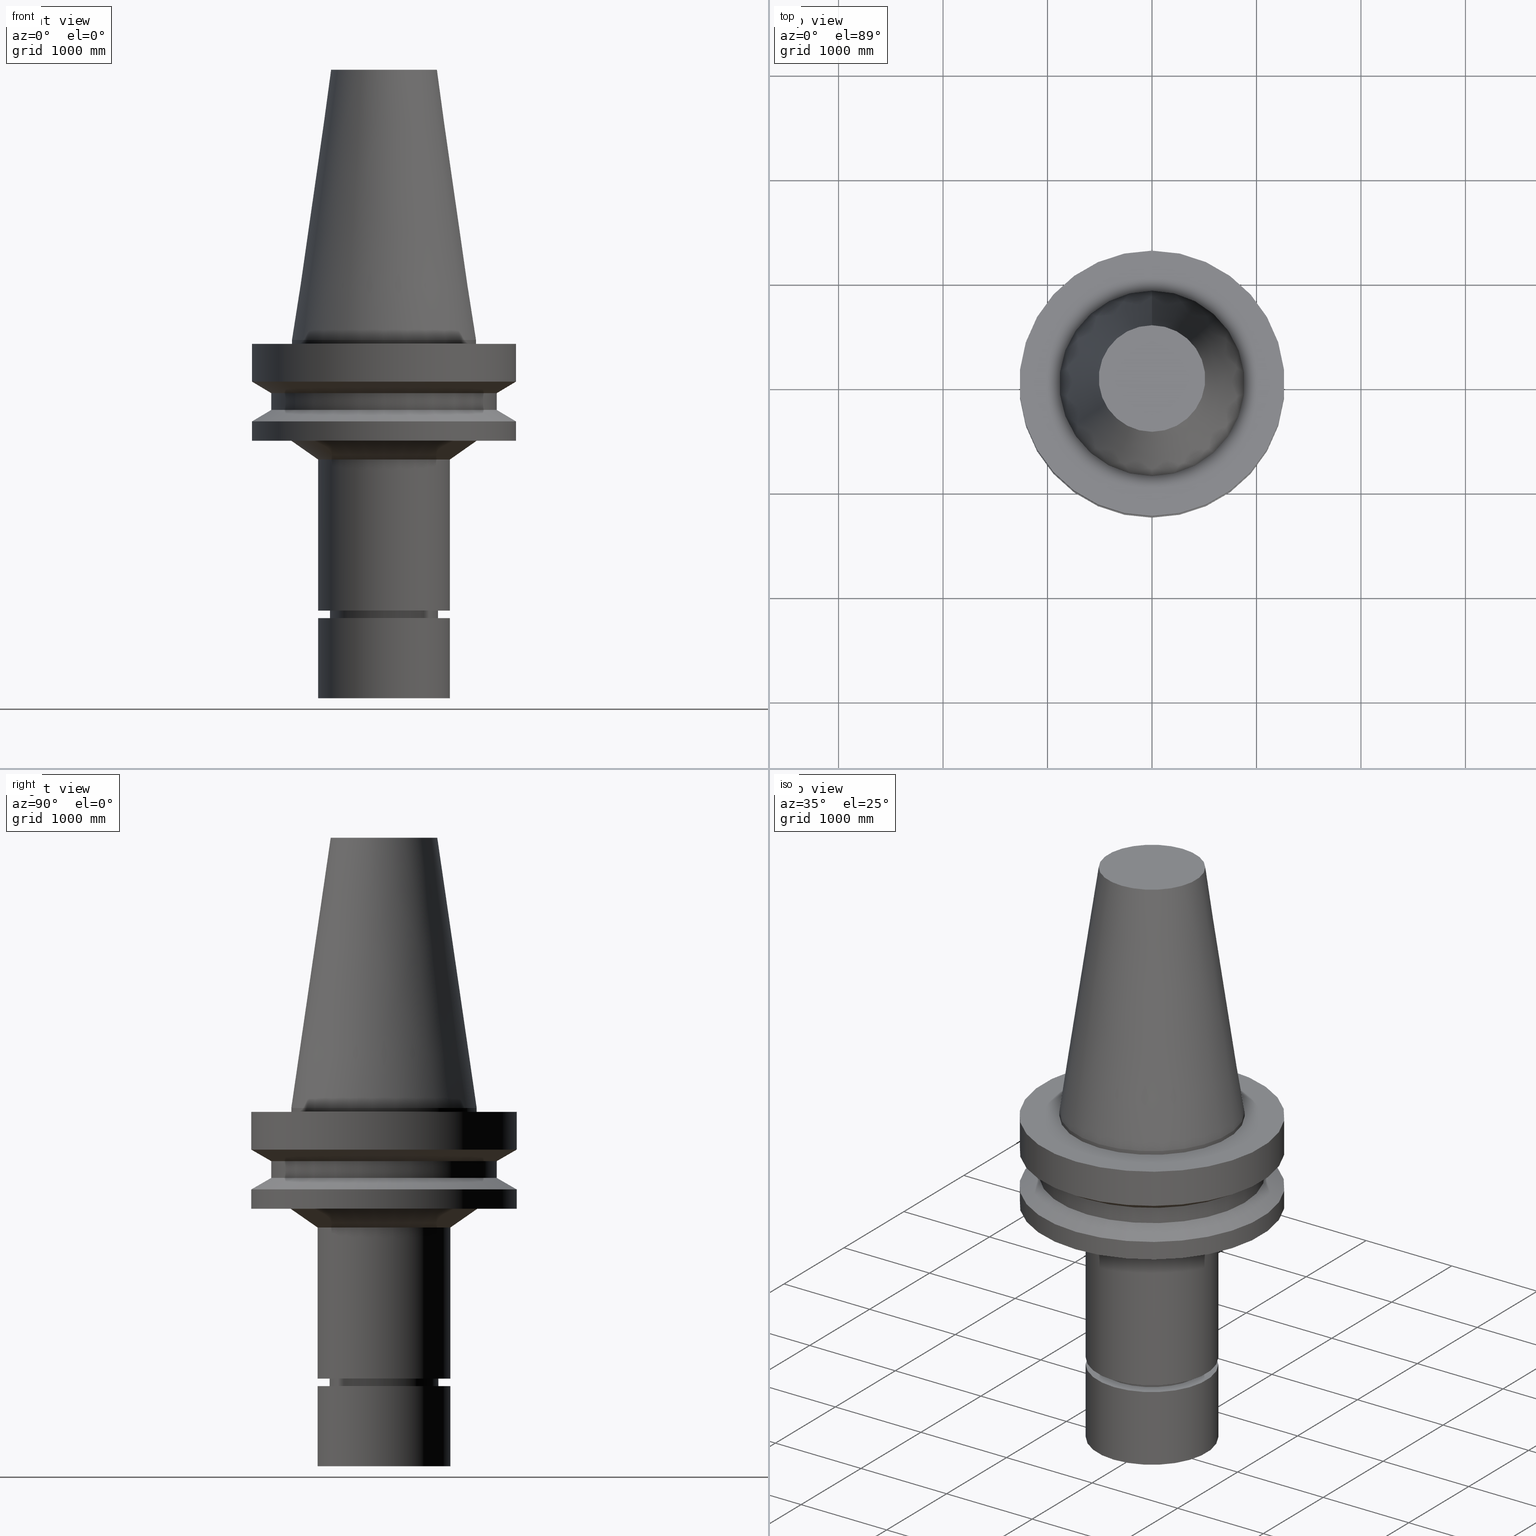
[diagram: canonical four-view strip — front | top / right | iso, engineering-drawing reading convention]
A machine part, canonical four-view strip (front | top / right | iso — engineering-drawing reading convention). The complete STEP part file that produces these views, byte-faithful:
ISO-10303-21;
HEADER;
FILE_DESCRIPTION((''),'1');
FILE_NAME('V:/90_\X2\53D65F9730C730FC30BF\X0\/00_\X2\6DE18DEF30C730FC30BF\X0\/ALL/BBT-BKUS\X2\FF76FF80FF9BFF78FF9E752852A05DE556F3\X0\201801/BBT50-MEGAER/BBT50-MEGAER32-135NL.stp','2018-02-02T09:03:34',(''),(''),'Spatial Interop R21 SP3','Kubotek KeyCreator 2011 V10.0.2 (22737)',' ');
FILE_SCHEMA(('automotive_design'));
ENDSEC;
DATA;
#1=MECHANICAL_DESIGN_GEOMETRIC_PRESENTATION_REPRESENTATION(' ',(#14,#15,#16,#17,#18,#19,#20,#21,#22,#23,#24,#25,#26,#27,#28,#29,#30,#31,#32,#33,#34,#35,#36,#37,#38,#39,#40,#41,#42,#43,#44,#45,#46,#47,#48,#49,#50,#51,#52,#53,#54,#55),#10);
#2=PRODUCT_DEFINITION_CONTEXT('',#56,'design');
#3=APPLICATION_PROTOCOL_DEFINITION('INTERNATIONAL STANDARD','automotive_design',1994,#56);
#4=PRODUCT_CATEGORY_RELATIONSHIP('NONE','NONE',#57,#58);
#5=SHAPE_DEFINITION_REPRESENTATION(#59,#60);
#6=PRODUCT_DEFINITION_CONTEXT('',#61,'design');
#7=APPLICATION_PROTOCOL_DEFINITION('INTERNATIONAL STANDARD','automotive_design',1994,#61);
#8=PRODUCT_CATEGORY_RELATIONSHIP('NONE','NONE',#62,#63);
#9=SHAPE_DEFINITION_REPRESENTATION(#64,#65);
#10= (GEOMETRIC_REPRESENTATION_CONTEXT(3)GLOBAL_UNCERTAINTY_ASSIGNED_CONTEXT((#68))GLOBAL_UNIT_ASSIGNED_CONTEXT((#70,#71,#72))REPRESENTATION_CONTEXT('NONE','WORKSPACE'));
#14=STYLED_ITEM('',(#74),#75);
#15=STYLED_ITEM('',(#76),#77);
#16=STYLED_ITEM('',(#78),#79);
#17=STYLED_ITEM('',(#80,#81),#82);
#18=STYLED_ITEM('',(#83,#84),#85);
#19=STYLED_ITEM('',(#86,#87),#88);
#20=STYLED_ITEM('',(#89),#90);
#21=STYLED_ITEM('',(#91,#92),#93);
#22=STYLED_ITEM('',(#94),#95);
#23=STYLED_ITEM('',(#96),#97);
#24=STYLED_ITEM('',(#98,#99),#100);
#25=STYLED_ITEM('',(#101),#102);
#26=STYLED_ITEM('',(#103),#104);
#27=STYLED_ITEM('',(#105,#106),#107);
#28=STYLED_ITEM('',(#108,#109),#110);
#29=STYLED_ITEM('',(#111,#112),#113);
#30=STYLED_ITEM('',(#114),#115);
#31=STYLED_ITEM('',(#116,#117),#118);
#32=STYLED_ITEM('',(#119),#120);
#33=STYLED_ITEM('',(#121),#122);
#34=STYLED_ITEM('',(#123,#124),#125);
#35=STYLED_ITEM('',(#126),#127);
#36=STYLED_ITEM('',(#128),#129);
#37=STYLED_ITEM('',(#130),#131);
#38=STYLED_ITEM('',(#132,#133),#134);
#39=STYLED_ITEM('',(#135),#136);
#40=STYLED_ITEM('',(#137,#138),#139);
#41=STYLED_ITEM('',(#140),#141);
#42=STYLED_ITEM('',(#142,#143),#144);
#43=STYLED_ITEM('',(#145,#146),#147);
#44=STYLED_ITEM('',(#148,#149),#150);
#45=STYLED_ITEM('',(#151),#152);
#46=STYLED_ITEM('',(#153),#154);
#47=STYLED_ITEM('',(#155,#156),#157);
#48=STYLED_ITEM('',(#158,#159),#160);
#49=STYLED_ITEM('',(#161,#162),#163);
#50=STYLED_ITEM('',(#164,#165),#166);
#51=STYLED_ITEM('',(#167,#168),#169);
#52=STYLED_ITEM('',(#170,#171),#172);
#53=STYLED_ITEM('',(#173,#174),#175);
#54=STYLED_ITEM('',(#176),#177);
#55=STYLED_ITEM('',(#178,#179),#180);
#56=APPLICATION_CONTEXT(' ');
#57=PRODUCT_CATEGORY('part','NONE');
#58=PRODUCT_RELATED_PRODUCT_CATEGORY('detail',' ',(#181));
#59=PRODUCT_DEFINITION_SHAPE('NONE','NONE',#182);
#60=ADVANCED_BREP_SHAPE_REPRESENTATION('Unnamed[1]',(#163,#183),#10);
#61=APPLICATION_CONTEXT(' ');
#62=PRODUCT_CATEGORY('part','NONE');
#63=PRODUCT_RELATED_PRODUCT_CATEGORY('detail',' ',(#184));
#64=PRODUCT_DEFINITION_SHAPE('NONE','NONE',#185);
#65=ADVANCED_BREP_SHAPE_REPRESENTATION('Unnamed[1]',(#139,#186),#10);
#68=UNCERTAINTY_MEASURE_WITH_UNIT(LENGTH_MEASURE(1.0E-006),#70,'','');
#70= (CONVERSION_BASED_UNIT('INCH',#189)LENGTH_UNIT()NAMED_UNIT(#192));
#71= (NAMED_UNIT(#194)PLANE_ANGLE_UNIT()SI_UNIT($,.RADIAN.));
#72= (NAMED_UNIT(#194)SOLID_ANGLE_UNIT()SI_UNIT($,.STERADIAN.));
#74=PRESENTATION_STYLE_ASSIGNMENT((#200));
#75=EDGE_CURVE('Unnamed[1]',#201,#201,#202,.T.);
#76=PRESENTATION_STYLE_ASSIGNMENT((#203));
#77=EDGE_CURVE('Unnamed[1]',#204,#204,#205,.T.);
#78=PRESENTATION_STYLE_ASSIGNMENT((#206));
#79=EDGE_CURVE('Unnamed[1]',#207,#207,#208,.T.);
#80=PRESENTATION_STYLE_ASSIGNMENT((#209));
#81=PRESENTATION_STYLE_ASSIGNMENT((#210));
#82=ADVANCED_FACE('Unnamed[1]',(#211,#212),#213,.T.);
#83=PRESENTATION_STYLE_ASSIGNMENT((#214));
#84=PRESENTATION_STYLE_ASSIGNMENT((#215));
#85=ADVANCED_FACE('Unnamed[1]',(#216,#217),#218,.T.);
#86=PRESENTATION_STYLE_ASSIGNMENT((#219));
#87=PRESENTATION_STYLE_ASSIGNMENT((#220));
#88=ADVANCED_FACE('Unnamed[1]',(#221,#222),#223,.T.);
#89=PRESENTATION_STYLE_ASSIGNMENT((#224));
#90=EDGE_CURVE('Unnamed[1]',#225,#225,#226,.T.);
#91=PRESENTATION_STYLE_ASSIGNMENT((#227));
#92=PRESENTATION_STYLE_ASSIGNMENT((#228));
#93=ADVANCED_FACE('Unnamed[1]',(#229,#230),#231,.T.);
#94=PRESENTATION_STYLE_ASSIGNMENT((#232));
#95=EDGE_CURVE('Unnamed[1]',#233,#233,#234,.T.);
#96=PRESENTATION_STYLE_ASSIGNMENT((#235));
#97=EDGE_CURVE('Unnamed[1]',#236,#236,#237,.T.);
#98=PRESENTATION_STYLE_ASSIGNMENT((#238));
#99=PRESENTATION_STYLE_ASSIGNMENT((#239));
#100=ADVANCED_FACE('Unnamed[1]',(#240,#241),#242,.T.);
#101=PRESENTATION_STYLE_ASSIGNMENT((#243));
#102=EDGE_CURVE('Unnamed[1]',#244,#244,#245,.T.);
#103=PRESENTATION_STYLE_ASSIGNMENT((#246));
#104=EDGE_CURVE('Unnamed[1]',#247,#247,#248,.T.);
#105=PRESENTATION_STYLE_ASSIGNMENT((#249));
#106=PRESENTATION_STYLE_ASSIGNMENT((#250));
#107=ADVANCED_FACE('Unnamed[1]',(#251,#252),#253,.T.);
#108=PRESENTATION_STYLE_ASSIGNMENT((#254));
#109=PRESENTATION_STYLE_ASSIGNMENT((#255));
#110=ADVANCED_FACE('Unnamed[1]',(#256,#257),#258,.T.);
#111=PRESENTATION_STYLE_ASSIGNMENT((#259));
#112=PRESENTATION_STYLE_ASSIGNMENT((#260));
#113=ADVANCED_FACE('Unnamed[1]',(#261,#262),#263,.T.);
#114=PRESENTATION_STYLE_ASSIGNMENT((#264));
#115=EDGE_CURVE('Unnamed[1]',#265,#265,#266,.T.);
#116=PRESENTATION_STYLE_ASSIGNMENT((#267));
#117=PRESENTATION_STYLE_ASSIGNMENT((#268));
#118=ADVANCED_FACE('Unnamed[1]',(#269),#270,.T.);
#119=PRESENTATION_STYLE_ASSIGNMENT((#271));
#120=EDGE_CURVE('Unnamed[1]',#272,#272,#273,.T.);
#121=PRESENTATION_STYLE_ASSIGNMENT((#274));
#122=EDGE_CURVE('Unnamed[1]',#275,#275,#276,.T.);
#123=PRESENTATION_STYLE_ASSIGNMENT((#277));
#124=PRESENTATION_STYLE_ASSIGNMENT((#278));
#125=ADVANCED_FACE('Unnamed[1]',(#279),#280,.T.);
#126=PRESENTATION_STYLE_ASSIGNMENT((#281));
#127=EDGE_CURVE('Unnamed[1]',#282,#282,#283,.T.);
#128=PRESENTATION_STYLE_ASSIGNMENT((#284));
#129=EDGE_CURVE('Unnamed[1]',#285,#285,#286,.T.);
#130=PRESENTATION_STYLE_ASSIGNMENT((#287));
#131=EDGE_CURVE('Unnamed[1]',#288,#288,#289,.T.);
#132=PRESENTATION_STYLE_ASSIGNMENT((#290));
#133=PRESENTATION_STYLE_ASSIGNMENT((#291));
#134=ADVANCED_FACE('Unnamed[1]',(#292,#293),#294,.T.);
#135=PRESENTATION_STYLE_ASSIGNMENT((#295));
#136=EDGE_CURVE('Unnamed[1]',#296,#296,#297,.T.);
#137=PRESENTATION_STYLE_ASSIGNMENT((#298));
#138=PRESENTATION_STYLE_ASSIGNMENT((#299));
#139=MANIFOLD_SOLID_BREP('Unnamed[1]',#300);
#140=PRESENTATION_STYLE_ASSIGNMENT((#301));
#141=EDGE_CURVE('Unnamed[1]',#302,#302,#303,.T.);
#142=PRESENTATION_STYLE_ASSIGNMENT((#304));
#143=PRESENTATION_STYLE_ASSIGNMENT((#305));
#144=ADVANCED_FACE('Unnamed[1]',(#306),#307,.T.);
#145=PRESENTATION_STYLE_ASSIGNMENT((#308));
#146=PRESENTATION_STYLE_ASSIGNMENT((#309));
#147=ADVANCED_FACE('Unnamed[1]',(#310,#311),#312,.T.);
#148=PRESENTATION_STYLE_ASSIGNMENT((#313));
#149=PRESENTATION_STYLE_ASSIGNMENT((#314));
#150=ADVANCED_FACE('Unnamed[1]',(#315,#316),#317,.T.);
#151=PRESENTATION_STYLE_ASSIGNMENT((#318));
#152=EDGE_CURVE('Unnamed[1]',#319,#319,#320,.T.);
#153=PRESENTATION_STYLE_ASSIGNMENT((#321));
#154=EDGE_CURVE('Unnamed[1]',#322,#322,#323,.T.);
#155=PRESENTATION_STYLE_ASSIGNMENT((#324));
#156=PRESENTATION_STYLE_ASSIGNMENT((#325));
#157=ADVANCED_FACE('Unnamed[1]',(#326,#327),#328,.T.);
#158=PRESENTATION_STYLE_ASSIGNMENT((#329));
#159=PRESENTATION_STYLE_ASSIGNMENT((#330));
#160=ADVANCED_FACE('Unnamed[1]',(#331,#332),#333,.T.);
#161=PRESENTATION_STYLE_ASSIGNMENT((#334));
#162=PRESENTATION_STYLE_ASSIGNMENT((#335));
#163=MANIFOLD_SOLID_BREP('Unnamed[1]',#336);
#164=PRESENTATION_STYLE_ASSIGNMENT((#337));
#165=PRESENTATION_STYLE_ASSIGNMENT((#338));
#166=ADVANCED_FACE('Unnamed[1]',(#339,#340),#341,.T.);
#167=PRESENTATION_STYLE_ASSIGNMENT((#342));
#168=PRESENTATION_STYLE_ASSIGNMENT((#343));
#169=ADVANCED_FACE('Unnamed[1]',(#344,#345),#346,.T.);
#170=PRESENTATION_STYLE_ASSIGNMENT((#347));
#171=PRESENTATION_STYLE_ASSIGNMENT((#348));
#172=ADVANCED_FACE('Unnamed[1]',(#349,#350),#351,.T.);
#173=PRESENTATION_STYLE_ASSIGNMENT((#352));
#174=PRESENTATION_STYLE_ASSIGNMENT((#353));
#175=ADVANCED_FACE('Unnamed[1]',(#354),#355,.T.);
#176=PRESENTATION_STYLE_ASSIGNMENT((#356));
#177=EDGE_CURVE('Unnamed[1]',#357,#357,#358,.T.);
#178=PRESENTATION_STYLE_ASSIGNMENT((#359));
#179=PRESENTATION_STYLE_ASSIGNMENT((#360));
#180=ADVANCED_FACE('Unnamed[1]',(#361,#362),#363,.T.);
#181=PRODUCT('Unnamed[1]','Unnamed[1]','PART-Unnamed[1]-DESC',(#364));
#182=PRODUCT_DEFINITION('NONE','NONE',#365,#2);
#183=AXIS2_PLACEMENT_3D('',#366,#367,#368);
#184=PRODUCT('Unnamed[1]','Unnamed[1]','PART-Unnamed[1]-DESC',(#369));
#185=PRODUCT_DEFINITION('NONE','NONE',#370,#6);
#186=AXIS2_PLACEMENT_3D('',#371,#372,#373);
#189=LENGTH_MEASURE_WITH_UNIT(LENGTH_MEASURE(25.4),#374);
#192=DIMENSIONAL_EXPONENTS(1.0,0.0,0.0,0.0,0.0,0.0,0.0);
#194=DIMENSIONAL_EXPONENTS(0.0,0.0,0.0,0.0,0.0,0.0,0.0);
#200=CURVE_STYLE('',#375,POSITIVE_LENGTH_MEASURE(1000.0),#376);
#201=VERTEX_POINT('',#377);
#202=CIRCLE('',#378,42.5);
#203=CURVE_STYLE('',#379,POSITIVE_LENGTH_MEASURE(1000.0),#380);
#204=VERTEX_POINT('',#381);
#205=CIRCLE('',#382,25.0);
#206=CURVE_STYLE('',#383,POSITIVE_LENGTH_MEASURE(1000.0),#384);
#207=VERTEX_POINT('',#385);
#208=CIRCLE('',#386,20.0000000000001);
#209=SURFACE_STYLE_USAGE(.BOTH.,#387);
#210=CURVE_STYLE('',#388,POSITIVE_LENGTH_MEASURE(1000.0),#389);
#211=FACE_BOUND('',#390,.T.);
#212=FACE_BOUND('',#391,.T.);
#213=CYLINDRICAL_SURFACE('',#392,20.0);
#214=SURFACE_STYLE_USAGE(.BOTH.,#393);
#215=CURVE_STYLE('',#394,POSITIVE_LENGTH_MEASURE(1000.0),#395);
#216=FACE_BOUND('',#396,.T.);
#217=FACE_BOUND('',#397,.T.);
#218=CYLINDRICAL_SURFACE('',#398,50.0);
#219=SURFACE_STYLE_USAGE(.BOTH.,#399);
#220=CURVE_STYLE('',#400,POSITIVE_LENGTH_MEASURE(1000.0),#401);
#221=FACE_BOUND('',#402,.T.);
#222=FACE_BOUND('',#403,.T.);
#223=CONICAL_SURFACE('',#404,19.4499999999999,0.523598775598227);
#224=CURVE_STYLE('',#405,POSITIVE_LENGTH_MEASURE(1000.0),#406);
#225=VERTEX_POINT('',#407);
#226=CIRCLE('',#408,25.0);
#227=SURFACE_STYLE_USAGE(.BOTH.,#409);
#228=CURVE_STYLE('',#410,POSITIVE_LENGTH_MEASURE(1000.0),#411);
#229=FACE_BOUND('',#412,.T.);
#230=FACE_BOUND('',#413,.T.);
#231=CONICAL_SURFACE('',#414,30.0717863357276,0.962446965226469);
#232=CURVE_STYLE('',#415,POSITIVE_LENGTH_MEASURE(1000.0),#416);
#233=VERTEX_POINT('',#417);
#234=CIRCLE('',#418,18.8999999999997);
#235=CURVE_STYLE('',#419,POSITIVE_LENGTH_MEASURE(1000.0),#420);
#236=VERTEX_POINT('',#421);
#237=CIRCLE('',#422,20.5000000000012);
#238=SURFACE_STYLE_USAGE(.BOTH.,#423);
#239=CURVE_STYLE('',#424,POSITIVE_LENGTH_MEASURE(1000.0),#425);
#240=FACE_BOUND('',#426,.T.);
#241=FACE_BOUND('',#427,.T.);
#242=CONICAL_SURFACE('',#428,20.2500000000006,1.04719755120258);
#243=CURVE_STYLE('',#429,POSITIVE_LENGTH_MEASURE(1000.0),#430);
#244=VERTEX_POINT('',#431);
#245=CIRCLE('',#432,50.0);
#246=CURVE_STYLE('',#433,POSITIVE_LENGTH_MEASURE(1000.0),#434);
#247=VERTEX_POINT('',#435);
#248=CIRCLE('',#436,50.0);
#249=SURFACE_STYLE_USAGE(.BOTH.,#437);
#250=CURVE_STYLE('',#438,POSITIVE_LENGTH_MEASURE(1000.0),#439);
#251=FACE_BOUND('',#440,.T.);
#252=FACE_BOUND('',#441,.T.);
#253=CYLINDRICAL_SURFACE('',#442,20.4999999999961);
#254=SURFACE_STYLE_USAGE(.BOTH.,#443);
#255=CURVE_STYLE('',#444,POSITIVE_LENGTH_MEASURE(1000.0),#445);
#256=FACE_OUTER_BOUND('',#446,.T.);
#257=FACE_BOUND('',#447,.T.);
#258=PLANE('',#448);
#259=SURFACE_STYLE_USAGE(.BOTH.,#449);
#260=CURVE_STYLE('',#450,POSITIVE_LENGTH_MEASURE(1000.0),#451);
#261=FACE_BOUND('',#452,.T.);
#262=FACE_BOUND('',#453,.T.);
#263=CYLINDRICAL_SURFACE('',#454,50.0);
#264=CURVE_STYLE('',#455,POSITIVE_LENGTH_MEASURE(1000.0),#456);
#265=VERTEX_POINT('',#457);
#266=CIRCLE('',#458,25.0000000000004);
#267=SURFACE_STYLE_USAGE(.BOTH.,#459);
#268=CURVE_STYLE('',#460,POSITIVE_LENGTH_MEASURE(1000.0),#461);
#269=FACE_OUTER_BOUND('',#462,.T.);
#270=PLANE('',#463);
#271=CURVE_STYLE('',#464,POSITIVE_LENGTH_MEASURE(1000.0),#465);
#272=VERTEX_POINT('',#466);
#273=CIRCLE('',#467,50.0);
#274=CURVE_STYLE('',#468,POSITIVE_LENGTH_MEASURE(1000.0),#469);
#275=VERTEX_POINT('',#470);
#276=CIRCLE('',#471,20.0);
#277=SURFACE_STYLE_USAGE(.BOTH.,#472);
#278=CURVE_STYLE('',#473,POSITIVE_LENGTH_MEASURE(1000.0),#474);
#279=FACE_OUTER_BOUND('',#475,.T.);
#280=PLANE('',#476);
#281=CURVE_STYLE('',#477,POSITIVE_LENGTH_MEASURE(1000.0),#478);
#282=VERTEX_POINT('',#479);
#283=CIRCLE('',#480,35.1435726714549);
#284=CURVE_STYLE('',#481,POSITIVE_LENGTH_MEASURE(1000.0),#482);
#285=VERTEX_POINT('',#483);
#286=CIRCLE('',#484,50.0);
#287=CURVE_STYLE('',#485,POSITIVE_LENGTH_MEASURE(1000.0),#486);
#288=VERTEX_POINT('',#487);
#289=CIRCLE('',#488,20.0791666651884);
#290=SURFACE_STYLE_USAGE(.BOTH.,#489);
#291=CURVE_STYLE('',#490,POSITIVE_LENGTH_MEASURE(1000.0),#491);
#292=FACE_BOUND('',#492,.T.);
#293=FACE_OUTER_BOUND('',#493,.T.);
#294=PLANE('',#494);
#295=CURVE_STYLE('',#495,POSITIVE_LENGTH_MEASURE(1000.0),#496);
#296=VERTEX_POINT('',#497);
#297=CIRCLE('',#498,20.4999999999911);
#298=SURFACE_STYLE_USAGE(.BOTH.,#499);
#299=CURVE_STYLE('',#500,POSITIVE_LENGTH_MEASURE(1000.0),#501);
#300=CLOSED_SHELL('',(#125,#175,#147));
#301=CURVE_STYLE('',#502,POSITIVE_LENGTH_MEASURE(1000.0),#503);
#302=VERTEX_POINT('',#504);
#303=CIRCLE('',#505,34.925);
#304=SURFACE_STYLE_USAGE(.BOTH.,#506);
#305=CURVE_STYLE('',#507,POSITIVE_LENGTH_MEASURE(1000.0),#508);
#306=FACE_OUTER_BOUND('',#509,.T.);
#307=PLANE('',#510);
#308=SURFACE_STYLE_USAGE(.BOTH.,#511);
#309=CURVE_STYLE('',#512,POSITIVE_LENGTH_MEASURE(1000.0),#513);
#310=FACE_BOUND('',#514,.T.);
#311=FACE_BOUND('',#515,.T.);
#312=CYLINDRICAL_SURFACE('',#516,25.0);
#313=SURFACE_STYLE_USAGE(.BOTH.,#517);
#314=CURVE_STYLE('',#518,POSITIVE_LENGTH_MEASURE(1000.0),#519);
#315=FACE_BOUND('',#520,.T.);
#316=FACE_BOUND('',#521,.T.);
#317=CONICAL_SURFACE('',#522,46.25,1.04719755108882);
#318=CURVE_STYLE('',#523,POSITIVE_LENGTH_MEASURE(1000.0),#524);
#319=VERTEX_POINT('',#525);
#320=CIRCLE('',#526,25.0000000000001);
#321=CURVE_STYLE('',#527,POSITIVE_LENGTH_MEASURE(1000.0),#528);
#322=VERTEX_POINT('',#529);
#323=CIRCLE('',#530,34.925);
#324=SURFACE_STYLE_USAGE(.BOTH.,#531);
#325=CURVE_STYLE('',#532,POSITIVE_LENGTH_MEASURE(1000.0),#533);
#326=FACE_BOUND('',#534,.T.);
#327=FACE_BOUND('',#535,.T.);
#328=CONICAL_SURFACE('',#536,27.5020833325942,0.144812498253157);
#329=SURFACE_STYLE_USAGE(.BOTH.,#537);
#330=CURVE_STYLE('',#538,POSITIVE_LENGTH_MEASURE(1000.0),#539);
#331=FACE_BOUND('',#540,.T.);
#332=FACE_BOUND('',#541,.T.);
#333=CYLINDRICAL_SURFACE('',#542,42.5);
#334=SURFACE_STYLE_USAGE(.BOTH.,#543);
#335=CURVE_STYLE('',#544,POSITIVE_LENGTH_MEASURE(1000.0),#545);
#336=CLOSED_SHELL('',(#118,#88,#82,#100,#107,#166,#169,#93,#110,#85,#172,#160,#150,#113,#134,#180,#157,#144));
#337=SURFACE_STYLE_USAGE(.BOTH.,#546);
#338=CURVE_STYLE('',#547,POSITIVE_LENGTH_MEASURE(1000.0),#548);
#339=FACE_OUTER_BOUND('',#549,.T.);
#340=FACE_BOUND('',#550,.T.);
#341=PLANE('',#551);
#342=SURFACE_STYLE_USAGE(.BOTH.,#552);
#343=CURVE_STYLE('',#553,POSITIVE_LENGTH_MEASURE(1000.0),#554);
#344=FACE_BOUND('',#555,.T.);
#345=FACE_BOUND('',#556,.T.);
#346=CYLINDRICAL_SURFACE('',#557,25.0000000000002);
#347=SURFACE_STYLE_USAGE(.BOTH.,#558);
#348=CURVE_STYLE('',#559,POSITIVE_LENGTH_MEASURE(1000.0),#560);
#349=FACE_BOUND('',#561,.T.);
#350=FACE_BOUND('',#562,.T.);
#351=CONICAL_SURFACE('',#563,46.25,1.04719755108882);
#352=SURFACE_STYLE_USAGE(.BOTH.,#564);
#353=CURVE_STYLE('',#565,POSITIVE_LENGTH_MEASURE(1000.0),#566);
#354=FACE_OUTER_BOUND('',#567,.T.);
#355=PLANE('',#568);
#356=CURVE_STYLE('',#569,POSITIVE_LENGTH_MEASURE(1000.0),#570);
#357=VERTEX_POINT('',#571);
#358=CIRCLE('',#572,42.5);
#359=SURFACE_STYLE_USAGE(.BOTH.,#573);
#360=CURVE_STYLE('',#574,POSITIVE_LENGTH_MEASURE(1000.0),#575);
#361=FACE_BOUND('',#576,.T.);
#362=FACE_BOUND('',#577,.T.);
#363=CYLINDRICAL_SURFACE('',#578,34.925);
#364=PRODUCT_CONTEXT('',#56,'mechanical');
#365=PRODUCT_DEFINITION_FORMATION_WITH_SPECIFIED_SOURCE(' ','NONE',#181,.NOT_KNOWN.);
#366=CARTESIAN_POINT('',(0.0,0.0,0.0));
#367=DIRECTION('',(0.0,0.0,1.0));
#368=DIRECTION('',(1.0,0.0,0.0));
#369=PRODUCT_CONTEXT('',#61,'mechanical');
#370=PRODUCT_DEFINITION_FORMATION_WITH_SPECIFIED_SOURCE(' ','NONE',#184,.NOT_KNOWN.);
#371=CARTESIAN_POINT('',(0.0,0.0,0.0));
#372=DIRECTION('',(0.0,0.0,1.0));
#373=DIRECTION('',(1.0,0.0,0.0));
#374= (NAMED_UNIT(#192)LENGTH_UNIT()SI_UNIT(.MILLI.,.METRE.));
#375=DRAUGHTING_PRE_DEFINED_CURVE_FONT('continuous');
#376=COLOUR_RGB('',0.0,1.0,0.0);
#377=CARTESIAN_POINT('',(1.2264915470779E-015,42.5,-20.03012702));
#378=AXIS2_PLACEMENT_3D('',#580,#581,#582);
#379=DRAUGHTING_PRE_DEFINED_CURVE_FONT('continuous');
#380=COLOUR_RGB('',0.0,1.0,0.0);
#381=CARTESIAN_POINT('',(8.26636589424463E-015,25.0,-135.0));
#382=AXIS2_PLACEMENT_3D('',#583,#584,#585);
#383=DRAUGHTING_PRE_DEFINED_CURVE_FONT('continuous');
#384=COLOUR_RGB('',0.0,1.0,0.0);
#385=CARTESIAN_POINT('',(7.4761468784538E-015,20.0000000000001,-122.094744111673));
#386=AXIS2_PLACEMENT_3D('',#586,#587,#588);
#387=SURFACE_SIDE_STYLE('',(#589));
#388=DRAUGHTING_PRE_DEFINED_CURVE_FONT('continuous');
#389=COLOUR_RGB('',0.0,1.0,0.0);
#390=EDGE_LOOP('',(#590));
#391=EDGE_LOOP('',(#591));
#392=AXIS2_PLACEMENT_3D('',#592,#593,#594);
#393=SURFACE_SIDE_STYLE('',(#595));
#394=DRAUGHTING_PRE_DEFINED_CURVE_FONT('continuous');
#395=COLOUR_RGB('',0.0,1.0,0.0);
#396=EDGE_LOOP('',(#596));
#397=EDGE_LOOP('',(#597));
#398=AXIS2_PLACEMENT_3D('',#598,#599,#600);
#399=SURFACE_SIDE_STYLE('',(#601));
#400=DRAUGHTING_PRE_DEFINED_CURVE_FONT('continuous');
#401=COLOUR_RGB('',0.0,1.0,0.0);
#402=EDGE_LOOP('',(#602));
#403=EDGE_LOOP('',(#603));
#404=AXIS2_PLACEMENT_3D('',#604,#605,#606);
#405=DRAUGHTING_PRE_DEFINED_CURVE_FONT('continuous');
#406=COLOUR_RGB('',0.0,1.0,0.0);
#407=CARTESIAN_POINT('',(6.41714922753213E-015,25.0,-104.8));
#408=AXIS2_PLACEMENT_3D('',#607,#608,#609);
#409=SURFACE_SIDE_STYLE('',(#610));
#410=DRAUGHTING_PRE_DEFINED_CURVE_FONT('continuous');
#411=COLOUR_RGB('',0.0,1.0,0.0);
#412=EDGE_LOOP('',(#611));
#413=EDGE_LOOP('',(#612));
#414=AXIS2_PLACEMENT_3D('',#613,#614,#615);
#415=DRAUGHTING_PRE_DEFINED_CURVE_FONT('continuous');
#416=COLOUR_RGB('',0.0,1.0,0.0);
#417=CARTESIAN_POINT('',(7.5928101547136E-015,18.8999999999997,-124.0));
#418=AXIS2_PLACEMENT_3D('',#616,#617,#618);
#419=DRAUGHTING_PRE_DEFINED_CURVE_FONT('continuous');
#420=COLOUR_RGB('',0.0,1.0,0.0);
#421=CARTESIAN_POINT('',(6.62604227973845E-015,20.5000000000012,-108.211482434801));
#422=AXIS2_PLACEMENT_3D('',#619,#620,#621);
#423=SURFACE_SIDE_STYLE('',(#622));
#424=DRAUGHTING_PRE_DEFINED_CURVE_FONT('continuous');
#425=COLOUR_RGB('',0.0,1.0,0.0);
#426=EDGE_LOOP('',(#623));
#427=EDGE_LOOP('',(#624));
#428=AXIS2_PLACEMENT_3D('',#625,#626,#627);
#429=DRAUGHTING_PRE_DEFINED_CURVE_FONT('continuous');
#430=COLOUR_RGB('',0.0,1.0,0.0);
#431=CARTESIAN_POINT('',(9.18485099360509E-017,50.0,-1.49999999999999));
#432=AXIS2_PLACEMENT_3D('',#628,#629,#630);
#433=DRAUGHTING_PRE_DEFINED_CURVE_FONT('continuous');
#434=COLOUR_RGB('',0.0,1.0,0.0);
#435=CARTESIAN_POINT('',(9.61347737330674E-016,50.0,-15.7));
#436=AXIS2_PLACEMENT_3D('',#631,#632,#633);
#437=SURFACE_SIDE_STYLE('',(#634));
#438=DRAUGHTING_PRE_DEFINED_CURVE_FONT('continuous');
#439=COLOUR_RGB('',0.0,1.0,0.0);
#440=EDGE_LOOP('',(#635));
#441=EDGE_LOOP('',(#636));
#442=AXIS2_PLACEMENT_3D('',#637,#638,#639);
#443=SURFACE_SIDE_STYLE('',(#640));
#444=DRAUGHTING_PRE_DEFINED_CURVE_FONT('continuous');
#445=COLOUR_RGB('',0.0,1.0,0.0);
#446=EDGE_LOOP('',(#641));
#447=EDGE_LOOP('',(#642));
#448=AXIS2_PLACEMENT_3D('',#643,#644,#645);
#449=SURFACE_SIDE_STYLE('',(#646));
#450=DRAUGHTING_PRE_DEFINED_CURVE_FONT('continuous');
#451=COLOUR_RGB('',0.0,1.0,0.0);
#452=EDGE_LOOP('',(#647));
#453=EDGE_LOOP('',(#648));
#454=AXIS2_PLACEMENT_3D('',#649,#650,#651);
#455=DRAUGHTING_PRE_DEFINED_CURVE_FONT('continuous');
#456=COLOUR_RGB('',0.0,1.0,0.0);
#457=CARTESIAN_POINT('',(2.75941339741642E-015,25.0000000000004,-45.0646406676215));
#458=AXIS2_PLACEMENT_3D('',#652,#653,#654);
#459=SURFACE_SIDE_STYLE('',(#655));
#460=DRAUGHTING_PRE_DEFINED_CURVE_FONT('continuous');
#461=COLOUR_RGB('',0.0,1.0,0.0);
#462=EDGE_LOOP('',(#656));
#463=AXIS2_PLACEMENT_3D('',#657,#658,#659);
#464=DRAUGHTING_PRE_DEFINED_CURVE_FONT('continuous');
#465=COLOUR_RGB('',0.0,1.0,0.0);
#466=CARTESIAN_POINT('',(2.32682891837996E-015,50.0,-37.9999999999998));
#467=AXIS2_PLACEMENT_3D('',#660,#661,#662);
#468=DRAUGHTING_PRE_DEFINED_CURVE_FONT('continuous');
#469=COLOUR_RGB('',0.0,1.0,0.0);
#470=CARTESIAN_POINT('',(6.643718533717E-015,20.0,-108.500157569392));
#471=AXIS2_PLACEMENT_3D('',#663,#664,#665);
#472=SURFACE_SIDE_STYLE('',(#666));
#473=DRAUGHTING_PRE_DEFINED_CURVE_FONT('continuous');
#474=COLOUR_RGB('',0.0,1.0,0.0);
#475=EDGE_LOOP('',(#667));
#476=AXIS2_PLACEMENT_3D('',#668,#669,#670);
#477=DRAUGHTING_PRE_DEFINED_CURVE_FONT('continuous');
#478=COLOUR_RGB('',0.0,1.0,0.0);
#479=CARTESIAN_POINT('',(2.32682891837996E-015,35.1435726714549,-37.9999999999998));
#480=AXIS2_PLACEMENT_3D('',#671,#672,#673);
#481=DRAUGHTING_PRE_DEFINED_CURVE_FONT('continuous');
#482=COLOUR_RGB('',0.0,1.0,0.0);
#483=CARTESIAN_POINT('',(1.87983283669119E-015,50.0,-30.7000000000001));
#484=AXIS2_PLACEMENT_3D('',#674,#675,#676);
#485=DRAUGHTING_PRE_DEFINED_CURVE_FONT('continuous');
#486=COLOUR_RGB('',0.0,1.0,0.0);
#487=CARTESIAN_POINT('',(-6.23345220766003E-015,20.0791666651884,101.8));
#488=AXIS2_PLACEMENT_3D('',#677,#678,#679);
#489=SURFACE_SIDE_STYLE('',(#680));
#490=DRAUGHTING_PRE_DEFINED_CURVE_FONT('continuous');
#491=COLOUR_RGB('',0.0,1.0,0.0);
#492=EDGE_LOOP('',(#681));
#493=EDGE_LOOP('',(#682));
#494=AXIS2_PLACEMENT_3D('',#683,#684,#685);
#495=DRAUGHTING_PRE_DEFINED_CURVE_FONT('continuous');
#496=COLOUR_RGB('',0.0,1.0,0.0);
#497=CARTESIAN_POINT('',(6.24570832399483E-015,20.4999999999911,-102.000157569404));
#498=AXIS2_PLACEMENT_3D('',#686,#687,#688);
#499=SURFACE_SIDE_STYLE('',(#689));
#500=DRAUGHTING_PRE_DEFINED_CURVE_FONT('continuous');
#501=COLOUR_RGB('',0.0,1.0,0.0);
#502=DRAUGHTING_PRE_DEFINED_CURVE_FONT('continuous');
#503=COLOUR_RGB('',0.0,1.0,0.0);
#504=CARTESIAN_POINT('',(9.18485099360511E-017,34.925,-1.5));
#505=AXIS2_PLACEMENT_3D('',#690,#691,#692);
#506=SURFACE_SIDE_STYLE('',(#693));
#507=DRAUGHTING_PRE_DEFINED_CURVE_FONT('continuous');
#508=COLOUR_RGB('',0.0,1.0,0.0);
#509=EDGE_LOOP('',(#694));
#510=AXIS2_PLACEMENT_3D('',#695,#696,#697);
#511=SURFACE_SIDE_STYLE('',(#698));
#512=DRAUGHTING_PRE_DEFINED_CURVE_FONT('continuous');
#513=COLOUR_RGB('',0.0,1.0,0.0);
#514=EDGE_LOOP('',(#699));
#515=EDGE_LOOP('',(#700));
#516=AXIS2_PLACEMENT_3D('',#701,#702,#703);
#517=SURFACE_SIDE_STYLE('',(#704));
#518=DRAUGHTING_PRE_DEFINED_CURVE_FONT('continuous');
#519=COLOUR_RGB('',0.0,1.0,0.0);
#520=EDGE_LOOP('',(#705));
#521=EDGE_LOOP('',(#706));
#522=AXIS2_PLACEMENT_3D('',#707,#708,#709);
#523=DRAUGHTING_PRE_DEFINED_CURVE_FONT('continuous');
#524=COLOUR_RGB('',0.0,1.0,0.0);
#525=CARTESIAN_POINT('',(6.24570832399481E-015,25.0000000000001,-102.000157569404));
#526=AXIS2_PLACEMENT_3D('',#710,#711,#712);
#527=DRAUGHTING_PRE_DEFINED_CURVE_FONT('continuous');
#528=COLOUR_RGB('',0.0,1.0,0.0);
#529=CARTESIAN_POINT('',(-4.30483861169435E-031,34.925,4.27707894602213E-015));
#530=AXIS2_PLACEMENT_3D('',#713,#714,#715);
#531=SURFACE_SIDE_STYLE('',(#716));
#532=DRAUGHTING_PRE_DEFINED_CURVE_FONT('continuous');
#533=COLOUR_RGB('',0.0,1.0,0.0);
#534=EDGE_LOOP('',(#717));
#535=EDGE_LOOP('',(#718));
#536=AXIS2_PLACEMENT_3D('',#719,#720,#721);
#537=SURFACE_SIDE_STYLE('',(#722));
#538=DRAUGHTING_PRE_DEFINED_CURVE_FONT('continuous');
#539=COLOUR_RGB('',0.0,1.0,0.0);
#540=EDGE_LOOP('',(#723));
#541=EDGE_LOOP('',(#724));
#542=AXIS2_PLACEMENT_3D('',#725,#726,#727);
#543=SURFACE_SIDE_STYLE('',(#728));
#544=DRAUGHTING_PRE_DEFINED_CURVE_FONT('continuous');
#545=COLOUR_RGB('',0.0,1.0,0.0);
#546=SURFACE_SIDE_STYLE('',(#729));
#547=DRAUGHTING_PRE_DEFINED_CURVE_FONT('continuous');
#548=COLOUR_RGB('',0.0,1.0,0.0);
#549=EDGE_LOOP('',(#730));
#550=EDGE_LOOP('',(#731));
#551=AXIS2_PLACEMENT_3D('',#732,#733,#734);
#552=SURFACE_SIDE_STYLE('',(#735));
#553=DRAUGHTING_PRE_DEFINED_CURVE_FONT('continuous');
#554=COLOUR_RGB('',0.0,1.0,0.0);
#555=EDGE_LOOP('',(#736));
#556=EDGE_LOOP('',(#737));
#557=AXIS2_PLACEMENT_3D('',#738,#739,#740);
#558=SURFACE_SIDE_STYLE('',(#741));
#559=DRAUGHTING_PRE_DEFINED_CURVE_FONT('continuous');
#560=COLOUR_RGB('',0.0,1.0,0.0);
#561=EDGE_LOOP('',(#742));
#562=EDGE_LOOP('',(#743));
#563=AXIS2_PLACEMENT_3D('',#744,#745,#746);
#564=SURFACE_SIDE_STYLE('',(#747));
#565=DRAUGHTING_PRE_DEFINED_CURVE_FONT('continuous');
#566=COLOUR_RGB('',0.0,1.0,0.0);
#567=EDGE_LOOP('',(#748));
#568=AXIS2_PLACEMENT_3D('',#749,#750,#751);
#569=DRAUGHTING_PRE_DEFINED_CURVE_FONT('continuous');
#570=COLOUR_RGB('',0.0,1.0,0.0);
#571=CARTESIAN_POINT('',(1.61468902694397E-015,42.5,-26.3698729800001));
#572=AXIS2_PLACEMENT_3D('',#752,#753,#754);
#573=SURFACE_SIDE_STYLE('',(#755));
#574=DRAUGHTING_PRE_DEFINED_CURVE_FONT('continuous');
#575=COLOUR_RGB('',0.0,1.0,0.0);
#576=EDGE_LOOP('',(#756));
#577=EDGE_LOOP('',(#757));
#578=AXIS2_PLACEMENT_3D('',#758,#759,#760);
#580=CARTESIAN_POINT('',(1.2264915470779E-015,1.48852642846416E-014,-20.03012702));
#581=DIRECTION('',(-6.12323399573677E-017,-1.52619998477571E-017,1.0));
#582=DIRECTION('',(-5.76168069387766E-033,1.0,1.52619998477571E-017));
#583=CARTESIAN_POINT('',(8.26636589424463E-015,1.66399344685563E-014,-135.0));
#584=DIRECTION('',(6.12323399573677E-017,1.52619998477336E-017,-1.0));
#585=DIRECTION('',(-5.76168069387474E-033,1.0,1.52619998477336E-017));
#586=CARTESIAN_POINT('',(7.4761468784538E-015,1.64429744551537E-014,-122.094744111673));
#587=DIRECTION('',(-6.12323399573677E-017,-1.52619998477523E-017,1.0));
#588=DIRECTION('',(-5.76168069387501E-033,1.0,1.52619998477523E-017));
#589=SURFACE_STYLE_FILL_AREA(#761);
#590=ORIENTED_EDGE('',*,*,#122,.F.);
#591=ORIENTED_EDGE('',*,*,#79,.T.);
#592=CARTESIAN_POINT('',(7.0599327060854E-015,1.63392341662845E-014,-115.297450840533));
#593=DIRECTION('',(-6.12323399573676E-017,-1.52619998477523E-017,1.0));
#594=DIRECTION('',(-5.76168069387501E-033,1.0,1.52619998477523E-017));
#595=SURFACE_STYLE_FILL_AREA(#762);
#596=ORIENTED_EDGE('',*,*,#129,.F.);
#597=ORIENTED_EDGE('',*,*,#120,.T.);
#598=CARTESIAN_POINT('',(2.10333087753557E-015,1.51038141838819E-014,-34.3499999999999));
#599=DIRECTION('',(-6.12323399573677E-017,-1.52619998477039E-017,1.0));
#600=DIRECTION('',(-5.76168069387682E-033,1.0,1.52619998477039E-017));
#601=SURFACE_STYLE_FILL_AREA(#763);
#602=ORIENTED_EDGE('',*,*,#79,.F.);
#603=ORIENTED_EDGE('',*,*,#95,.T.);
#604=CARTESIAN_POINT('',(7.5344785165837E-015,1.64575134626924E-014,-123.047372055837));
#605=DIRECTION('',(-6.12323399573677E-017,-1.52619998477568E-017,1.0));
#606=DIRECTION('',(-5.76168069387546E-033,1.0,1.52619998477568E-017));
#607=CARTESIAN_POINT('',(6.41714922753213E-015,1.61790220731547E-014,-104.8));
#608=DIRECTION('',(6.12323399573677E-017,1.52619998477336E-017,-1.0));
#609=DIRECTION('',(-5.76168069387474E-033,1.0,1.52619998477336E-017));
#610=SURFACE_STYLE_FILL_AREA(#764);
#611=ORIENTED_EDGE('',*,*,#127,.F.);
#612=ORIENTED_EDGE('',*,*,#115,.T.);
#613=CARTESIAN_POINT('',(2.54312115789819E-015,1.52134307557229E-014,-41.5323203338107));
#614=DIRECTION('',(-6.12323399573677E-017,-1.5261999847712E-017,1.0));
#615=DIRECTION('',(-5.76168069387931E-033,1.0,1.5261999847712E-017));
#616=CARTESIAN_POINT('',(7.5928101547136E-015,1.64720524702312E-014,-124.0));
#617=DIRECTION('',(-6.12323399573677E-017,-1.52619998477616E-017,1.0));
#618=DIRECTION('',(-5.76168069387594E-033,1.0,1.52619998477616E-017));
#619=CARTESIAN_POINT('',(6.62604227973845E-015,1.62310881175552E-014,-108.211482434801));
#620=DIRECTION('',(-6.12323399573677E-017,-1.52619998477692E-017,1.0));
#621=DIRECTION('',(-5.76168069388191E-033,1.0,1.52619998477692E-017));
#622=SURFACE_STYLE_FILL_AREA(#765);
#623=ORIENTED_EDGE('',*,*,#97,.F.);
#624=ORIENTED_EDGE('',*,*,#122,.T.);
#625=CARTESIAN_POINT('',(6.63488040672773E-015,1.62332909974853E-014,-108.355820002097));
#626=DIRECTION('',(-6.12323399573677E-017,-1.5261999847721E-017,1.0));
#627=DIRECTION('',(-5.76168069387629E-033,1.0,1.5261999847721E-017));
#628=CARTESIAN_POINT('',(9.18485099360515E-017,1.46024574888838E-014,-1.5));
#629=DIRECTION('',(-6.12323399573677E-017,-1.52619998477039E-017,1.0));
#630=DIRECTION('',(-5.76168069387682E-033,1.0,1.52619998477039E-017));
#631=CARTESIAN_POINT('',(9.61347737330675E-016,1.48191778867216E-014,-15.7));
#632=DIRECTION('',(-6.12323399573677E-017,-1.52619998477039E-017,1.0));
#633=DIRECTION('',(-5.76168069387682E-033,1.0,1.52619998477039E-017));
#634=SURFACE_STYLE_FILL_AREA(#766);
#635=ORIENTED_EDGE('',*,*,#136,.F.);
#636=ORIENTED_EDGE('',*,*,#97,.T.);
#637=CARTESIAN_POINT('',(6.43587530186664E-015,1.61836894979802E-014,-105.105820002103));
#638=DIRECTION('',(-6.12323399573676E-017,-1.5261999847773E-017,1.0));
#639=DIRECTION('',(-5.76168069387458E-033,1.0,1.5261999847773E-017));
#640=SURFACE_STYLE_FILL_AREA(#767);
#641=ORIENTED_EDGE('',*,*,#120,.F.);
#642=ORIENTED_EDGE('',*,*,#127,.T.);
#643=CARTESIAN_POINT('',(2.32682891837996E-015,42.5717863357274,-37.9999999999998));
#644=DIRECTION('',(6.12323399573677E-017,2.03555648872361E-015,-1.0));
#645=DIRECTION('',(1.29469039650719E-031,-1.0,-2.03555648872361E-015));
#646=SURFACE_STYLE_FILL_AREA(#768);
#647=ORIENTED_EDGE('',*,*,#102,.F.);
#648=ORIENTED_EDGE('',*,*,#104,.T.);
#649=CARTESIAN_POINT('',(5.26598123633363E-016,1.47108176878027E-014,-8.60000000000002));
#650=DIRECTION('',(-6.12323399573677E-017,-1.52619998477039E-017,1.0));
#651=DIRECTION('',(-5.76168069387682E-033,1.0,1.52619998477039E-017));
#652=CARTESIAN_POINT('',(2.75941339741642E-015,1.52673410281196E-014,-45.0646406676215));
#653=DIRECTION('',(-6.12323399573677E-017,-1.52619998477036E-017,1.0));
#654=DIRECTION('',(-5.76168069387672E-033,1.0,1.52619998477036E-017));
#655=SURFACE_STYLE_FILL_AREA(#769);
#656=ORIENTED_EDGE('',*,*,#95,.F.);
#657=CARTESIAN_POINT('',(7.5928101547136E-015,9.44999999999984,-124.0));
#658=DIRECTION('',(6.12323399573677E-017,-1.34116826678969E-014,-1.0));
#659=DIRECTION('',(-8.16401559790232E-031,-1.0,1.34116826678969E-014));
#660=CARTESIAN_POINT('',(2.32682891837996E-015,1.51595204833261E-014,-37.9999999999998));
#661=DIRECTION('',(-6.12323399573677E-017,-1.52619998477039E-017,1.0));
#662=DIRECTION('',(-5.76168069386964E-033,1.0,1.52619998477039E-017));
#663=CARTESIAN_POINT('',(6.643718533717E-015,1.62354938774154E-014,-108.500157569392));
#664=DIRECTION('',(-6.12323399573676E-017,-1.52619998477523E-017,1.0));
#665=DIRECTION('',(-5.7616806938795E-033,1.0,1.52619998477523E-017));
#666=SURFACE_STYLE_FILL_AREA(#770);
#667=ORIENTED_EDGE('',*,*,#77,.T.);
#668=CARTESIAN_POINT('',(8.26636589424463E-015,12.5,-135.0));
#669=DIRECTION('',(6.12323399573677E-017,1.22464679914735E-016,-1.0));
#670=DIRECTION('',(-1.23259516440783E-032,1.0,1.22464679914735E-016));
#671=CARTESIAN_POINT('',(2.32682891837996E-015,1.51595204833261E-014,-37.9999999999998));
#672=DIRECTION('',(-6.12323399573677E-017,-1.5261999847718E-017,1.0));
#673=DIRECTION('',(-5.76168069387604E-033,1.0,1.5261999847718E-017));
#674=CARTESIAN_POINT('',(1.87983283669119E-015,1.50481078844377E-014,-30.7));
#675=DIRECTION('',(-6.12323399573677E-017,-1.52619998477039E-017,1.0));
#676=DIRECTION('',(-5.76168069387682E-033,1.0,1.52619998477039E-017));
#677=CARTESIAN_POINT('',(-6.23345220766003E-015,1.30258929046129E-014,101.8));
#678=DIRECTION('',(-6.12323399573677E-017,-1.5261999847694E-017,1.0));
#679=DIRECTION('',(-5.76168069386895E-033,1.0,1.5261999847694E-017));
#680=SURFACE_STYLE_FILL_AREA(#771);
#681=ORIENTED_EDGE('',*,*,#141,.F.);
#682=ORIENTED_EDGE('',*,*,#102,.T.);
#683=CARTESIAN_POINT('',(9.1848509936051E-017,42.4625,-1.49999999999999));
#684=DIRECTION('',(-6.12323399573677E-017,-1.22464679914735E-016,1.0));
#685=DIRECTION('',(-1.23259516440783E-032,1.0,1.22464679914735E-016));
#686=CARTESIAN_POINT('',(6.24570832399483E-015,1.61362908784053E-014,-102.000157569404));
#687=DIRECTION('',(-6.12323399573677E-017,-1.52619998476979E-017,1.0));
#688=DIRECTION('',(-5.76168069387163E-033,1.0,1.52619998476979E-017));
#689=SURFACE_STYLE_FILL_AREA(#772);
#690=CARTESIAN_POINT('',(9.18485099360515E-017,1.46024574888838E-014,-1.5));
#691=DIRECTION('',(-6.12323399573677E-017,-1.52619998477369E-017,1.0));
#692=DIRECTION('',(-5.761680693874E-033,1.0,1.52619998477369E-017));
#693=SURFACE_STYLE_FILL_AREA(#773);
#694=ORIENTED_EDGE('',*,*,#131,.T.);
#695=CARTESIAN_POINT('',(-6.23345220766003E-015,10.0395833325942,101.8));
#696=DIRECTION('',(-6.12323399573677E-017,-1.22464679914735E-016,1.0));
#697=DIRECTION('',(-1.23259516440783E-032,1.0,1.22464679914735E-016));
#698=SURFACE_STYLE_FILL_AREA(#774);
#699=ORIENTED_EDGE('',*,*,#77,.F.);
#700=ORIENTED_EDGE('',*,*,#90,.T.);
#701=CARTESIAN_POINT('',(7.34175756088838E-015,1.64094782708555E-014,-119.9));
#702=DIRECTION('',(6.12323399573677E-017,1.52619998477336E-017,-1.0));
#703=DIRECTION('',(-5.76168069387474E-033,1.0,1.52619998477336E-017));
#704=SURFACE_STYLE_FILL_AREA(#775);
#705=ORIENTED_EDGE('',*,*,#104,.F.);
#706=ORIENTED_EDGE('',*,*,#75,.T.);
#707=CARTESIAN_POINT('',(1.09391964220429E-015,1.48522210856816E-014,-17.86506351));
#708=DIRECTION('',(-6.12323399573677E-017,-1.52619998477633E-017,1.0));
#709=DIRECTION('',(-5.76168069387139E-033,1.0,1.52619998477633E-017));
#710=CARTESIAN_POINT('',(6.24570832399481E-015,1.61362908784053E-014,-102.000157569404));
#711=DIRECTION('',(-6.12323399573676E-017,-1.52619998477038E-017,1.0));
#712=DIRECTION('',(-5.7616806938768E-033,1.0,1.52619998477038E-017));
#713=CARTESIAN_POINT('',(-1.79707006884519E-046,1.45795644891122E-014,1.78548169845537E-030));
#714=DIRECTION('',(-6.12323399573677E-017,-1.52619998477369E-017,1.0));
#715=DIRECTION('',(-5.761680693874E-033,1.0,1.52619998477369E-017));
#716=SURFACE_STYLE_FILL_AREA(#776);
#717=ORIENTED_EDGE('',*,*,#131,.F.);
#718=ORIENTED_EDGE('',*,*,#154,.T.);
#719=CARTESIAN_POINT('',(-3.11672610383001E-015,1.38027286968626E-014,50.9));
#720=DIRECTION('',(6.12323399573677E-017,1.52619998476919E-017,-1.0));
#721=DIRECTION('',(-5.76168069388031E-033,1.0,1.52619998476919E-017));
#722=SURFACE_STYLE_FILL_AREA(#777);
#723=ORIENTED_EDGE('',*,*,#75,.F.);
#724=ORIENTED_EDGE('',*,*,#177,.T.);
#725=CARTESIAN_POINT('',(1.42059028701093E-015,1.49336428855796E-014,-23.2));
#726=DIRECTION('',(-6.12323399573677E-017,-1.52619998477571E-017,1.0));
#727=DIRECTION('',(-5.76168069387766E-033,1.0,1.52619998477571E-017));
#728=SURFACE_STYLE_FILL_AREA(#778);
#729=SURFACE_STYLE_FILL_AREA(#779);
#730=ORIENTED_EDGE('',*,*,#152,.F.);
#731=ORIENTED_EDGE('',*,*,#136,.T.);
#732=CARTESIAN_POINT('',(6.24570832399482E-015,22.7499999999956,-102.000157569404));
#733=DIRECTION('',(6.12323399573677E-017,6.64397866840582E-014,-1.0));
#734=DIRECTION('',(4.07309075766401E-030,-1.0,-6.64397866840582E-014));
#735=SURFACE_STYLE_FILL_AREA(#780);
#736=ORIENTED_EDGE('',*,*,#115,.F.);
#737=ORIENTED_EDGE('',*,*,#152,.T.);
#738=CARTESIAN_POINT('',(4.50256086070562E-015,1.57018159532625E-014,-73.5323991185128));
#739=DIRECTION('',(-6.12323399573677E-017,-1.52619998477037E-017,1.0));
#740=DIRECTION('',(-5.76168069386959E-033,1.0,1.52619998477037E-017));
#741=SURFACE_STYLE_FILL_AREA(#781);
#742=ORIENTED_EDGE('',*,*,#177,.F.);
#743=ORIENTED_EDGE('',*,*,#129,.T.);
#744=CARTESIAN_POINT('',(1.74726093181758E-015,1.50150646854777E-014,-28.5349364900001));
#745=DIRECTION('',(6.12323399573677E-017,1.52619998477633E-017,-1.0));
#746=DIRECTION('',(-5.76168069387139E-033,1.0,1.52619998477633E-017));
#747=SURFACE_STYLE_FILL_AREA(#782);
#748=ORIENTED_EDGE('',*,*,#90,.F.);
#749=CARTESIAN_POINT('',(6.41714922753213E-015,12.5,-104.8));
#750=DIRECTION('',(-6.12323399573677E-017,-1.22464679914735E-016,1.0));
#751=DIRECTION('',(1.23259516440783E-032,-1.0,-1.22464679914735E-016));
#752=CARTESIAN_POINT('',(1.61468902694397E-015,1.49820214865177E-014,-26.3698729800001));
#753=DIRECTION('',(-6.12323399573677E-017,-1.52619998477571E-017,1.0));
#754=DIRECTION('',(-5.76168069387766E-033,1.0,1.52619998477571E-017));
#755=SURFACE_STYLE_FILL_AREA(#783);
#756=ORIENTED_EDGE('',*,*,#154,.F.);
#757=ORIENTED_EDGE('',*,*,#141,.T.);
#758=CARTESIAN_POINT('',(4.59242549680257E-017,1.4591010988998E-014,-0.75));
#759=DIRECTION('',(-6.12323399573677E-017,-1.52619998477369E-017,1.0));
#760=DIRECTION('',(-5.761680693874E-033,1.0,1.52619998477369E-017));
#761=FILL_AREA_STYLE('',(#784));
#762=FILL_AREA_STYLE('',(#785));
#763=FILL_AREA_STYLE('',(#786));
#764=FILL_AREA_STYLE('',(#787));
#765=FILL_AREA_STYLE('',(#788));
#766=FILL_AREA_STYLE('',(#789));
#767=FILL_AREA_STYLE('',(#790));
#768=FILL_AREA_STYLE('',(#791));
#769=FILL_AREA_STYLE('',(#792));
#770=FILL_AREA_STYLE('',(#793));
#771=FILL_AREA_STYLE('',(#794));
#772=FILL_AREA_STYLE('',(#795));
#773=FILL_AREA_STYLE('',(#796));
#774=FILL_AREA_STYLE('',(#797));
#775=FILL_AREA_STYLE('',(#798));
#776=FILL_AREA_STYLE('',(#799));
#777=FILL_AREA_STYLE('',(#800));
#778=FILL_AREA_STYLE('',(#801));
#779=FILL_AREA_STYLE('',(#802));
#780=FILL_AREA_STYLE('',(#803));
#781=FILL_AREA_STYLE('',(#804));
#782=FILL_AREA_STYLE('',(#805));
#783=FILL_AREA_STYLE('',(#806));
#784=FILL_AREA_STYLE_COLOUR('',#807);
#785=FILL_AREA_STYLE_COLOUR('',#808);
#786=FILL_AREA_STYLE_COLOUR('',#809);
#787=FILL_AREA_STYLE_COLOUR('',#810);
#788=FILL_AREA_STYLE_COLOUR('',#811);
#789=FILL_AREA_STYLE_COLOUR('',#812);
#790=FILL_AREA_STYLE_COLOUR('',#813);
#791=FILL_AREA_STYLE_COLOUR('',#814);
#792=FILL_AREA_STYLE_COLOUR('',#815);
#793=FILL_AREA_STYLE_COLOUR('',#816);
#794=FILL_AREA_STYLE_COLOUR('',#817);
#795=FILL_AREA_STYLE_COLOUR('',#818);
#796=FILL_AREA_STYLE_COLOUR('',#819);
#797=FILL_AREA_STYLE_COLOUR('',#820);
#798=FILL_AREA_STYLE_COLOUR('',#821);
#799=FILL_AREA_STYLE_COLOUR('',#822);
#800=FILL_AREA_STYLE_COLOUR('',#823);
#801=FILL_AREA_STYLE_COLOUR('',#824);
#802=FILL_AREA_STYLE_COLOUR('',#825);
#803=FILL_AREA_STYLE_COLOUR('',#826);
#804=FILL_AREA_STYLE_COLOUR('',#827);
#805=FILL_AREA_STYLE_COLOUR('',#828);
#806=FILL_AREA_STYLE_COLOUR('',#829);
#807=COLOUR_RGB('',0.0,1.0,0.0);
#808=COLOUR_RGB('',0.0,1.0,0.0);
#809=COLOUR_RGB('',0.0,1.0,0.0);
#810=COLOUR_RGB('',0.0,1.0,0.0);
#811=COLOUR_RGB('',0.0,1.0,0.0);
#812=COLOUR_RGB('',0.0,1.0,0.0);
#813=COLOUR_RGB('',0.0,1.0,0.0);
#814=COLOUR_RGB('',0.0,1.0,0.0);
#815=COLOUR_RGB('',0.0,1.0,0.0);
#816=COLOUR_RGB('',0.0,1.0,0.0);
#817=COLOUR_RGB('',0.0,1.0,0.0);
#818=COLOUR_RGB('',0.0,1.0,0.0);
#819=COLOUR_RGB('',0.0,1.0,0.0);
#820=COLOUR_RGB('',0.0,1.0,0.0);
#821=COLOUR_RGB('',0.0,1.0,0.0);
#822=COLOUR_RGB('',0.0,1.0,0.0);
#823=COLOUR_RGB('',0.0,1.0,0.0);
#824=COLOUR_RGB('',0.0,1.0,0.0);
#825=COLOUR_RGB('',0.0,1.0,0.0);
#826=COLOUR_RGB('',0.0,1.0,0.0);
#827=COLOUR_RGB('',0.0,1.0,0.0);
#828=COLOUR_RGB('',0.0,1.0,0.0);
#829=COLOUR_RGB('',0.0,1.0,0.0);
ENDSEC;
END-ISO-10303-21;
